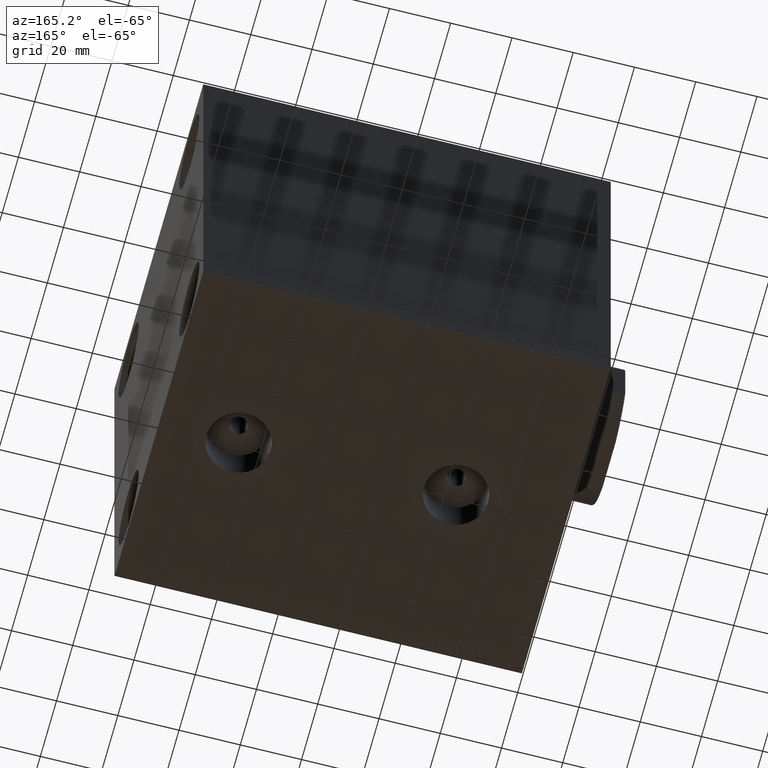
[diagram: clean part render]
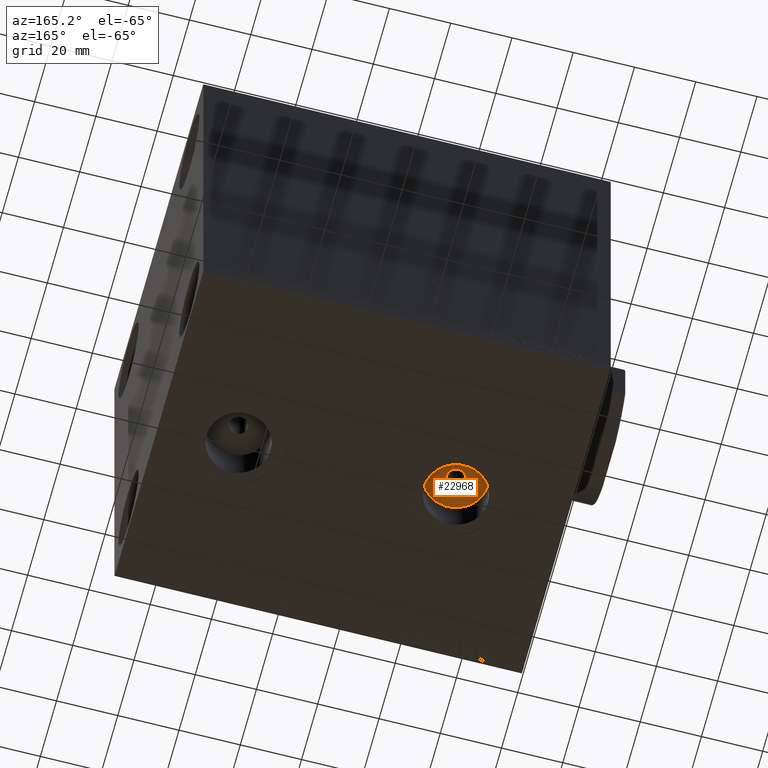
[diagram: same view with one face highlighted and labeled with its STEP entity id]
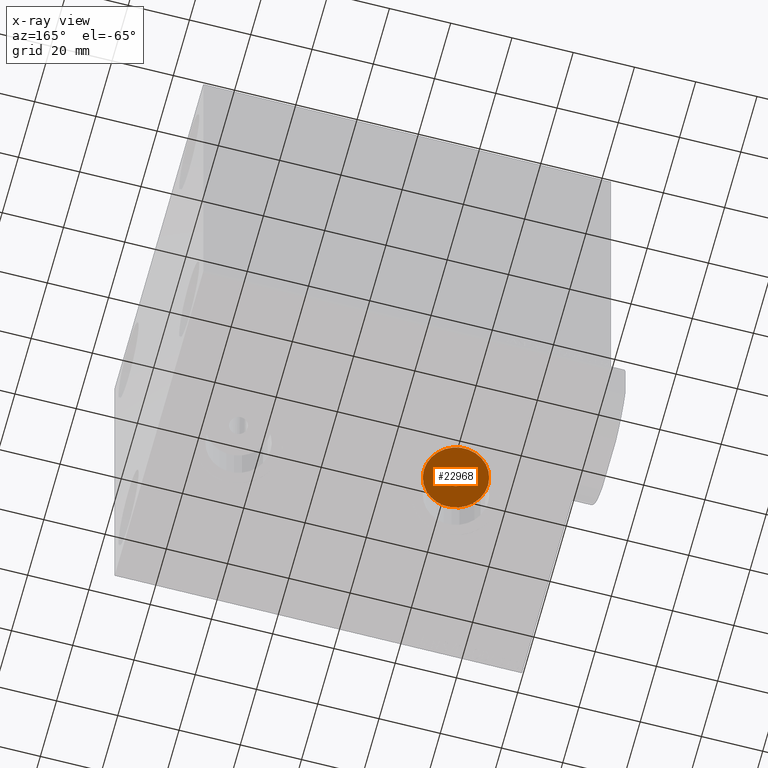
[diagram: x-ray of the same camera — body ghosted, the highlighted face saturated]
A machine part, auxiliary view. The second image highlights one B-rep face of the part: STEP entity #22968.
The next image is the same camera in x-ray: the body ghosted, the highlighted face saturated — about 0% of this face is hidden behind the body in this view.
In plain terms, the highlighted planar face has unit normal (0, 0, -1).
Its self-contained STEP definition (entity closure, byte-faithful):
#481 = CIRCLE ( 'NONE', #42449, 3.000000000000002665 ) ;
#617 = DIRECTION ( 'NONE',  ( 0.000000000000000000, 0.000000000000000000, -1.000000000000000000 ) ) ;
#1523 = EDGE_CURVE ( 'NONE', #16537, #41858, #35197, .T. ) ;
#5490 = CARTESIAN_POINT ( 'NONE',  ( 36.00000000000000000, 7.996758912811346044E-15, -57.00000000000001421 ) ) ;
#5770 = CARTESIAN_POINT ( 'NONE',  ( 32.99999999999999289, 7.996758912811346044E-15, -57.00000000000001421 ) ) ;
#7077 = EDGE_CURVE ( 'NONE', #32795, #12527, #481, .T. ) ;
#9299 = ORIENTED_EDGE ( 'NONE', *, *, #1523, .T. ) ;
#11537 = AXIS2_PLACEMENT_3D ( 'NONE', #21137, #38287, #34718 ) ;
#11721 = DIRECTION ( 'NONE',  ( -1.000000000000000000, 0.000000000000000000, -0.000000000000000000 ) ) ;
#12527 = VERTEX_POINT ( 'NONE', #5770 ) ;
#12690 = EDGE_CURVE ( 'NONE', #12527, #32795, #32550, .T. ) ;
#13946 = DIRECTION ( 'NONE',  ( -1.000000000000000000, 0.000000000000000000, 0.000000000000000000 ) ) ;
#14832 = FACE_OUTER_BOUND ( 'NONE', #20798, .T. ) ;
#15009 = DIRECTION ( 'NONE',  ( 0.000000000000000000, 0.000000000000000000, -1.000000000000000000 ) ) ;
#15438 = EDGE_LOOP ( 'NONE', ( #34601, #43882 ) ) ;
#15627 = DIRECTION ( 'NONE',  ( 0.000000000000000000, 0.000000000000000000, -1.000000000000000000 ) ) ;
#16537 = VERTEX_POINT ( 'NONE', #37108 ) ;
#16908 = AXIS2_PLACEMENT_3D ( 'NONE', #23763, #617, #13946 ) ;
#20798 = EDGE_LOOP ( 'NONE', ( #23992, #9299 ) ) ;
#21026 = CARTESIAN_POINT ( 'NONE',  ( 36.00000000000000000, 7.996758912811346044E-15, -57.00000000000001421 ) ) ;
#21137 = CARTESIAN_POINT ( 'NONE',  ( 36.00000000000000000, 7.996758912811346044E-15, -57.00000000000001421 ) ) ;
#22314 = CARTESIAN_POINT ( 'NONE',  ( 36.00000000000000000, 7.996758912811346044E-15, -57.00000000000001421 ) ) ;
#22968 = ADVANCED_FACE ( 'NONE', ( #25310, #14832 ), #28877, .T. ) ;
#23763 = CARTESIAN_POINT ( 'NONE',  ( 36.00000000000000000, 7.996758912811346044E-15, -57.00000000000001421 ) ) ;
#23992 = ORIENTED_EDGE ( 'NONE', *, *, #27144, .T. ) ;
#24819 = CARTESIAN_POINT ( 'NONE',  ( 25.51999999999999602, 7.996758912811346044E-15, -57.00000000000001421 ) ) ;
#25047 = CIRCLE ( 'NONE', #11537, 10.48000000000000043 ) ;
#25310 = FACE_BOUND ( 'NONE', #15438, .T. ) ;
#27144 = EDGE_CURVE ( 'NONE', #41858, #16537, #25047, .T. ) ;
#27783 = AXIS2_PLACEMENT_3D ( 'NONE', #5490, #28655, #11721 ) ;
#28111 = AXIS2_PLACEMENT_3D ( 'NONE', #21026, #15009, #34610 ) ;
#28655 = DIRECTION ( 'NONE',  ( 0.000000000000000000, 0.000000000000000000, -1.000000000000000000 ) ) ;
#28877 = PLANE ( 'NONE',  #27783 ) ;
#31544 = CARTESIAN_POINT ( 'NONE',  ( 39.00000000000000000, 8.364152952555553066E-15, -57.00000000000001421 ) ) ;
#32550 = CIRCLE ( 'NONE', #16908, 3.000000000000002665 ) ;
#32795 = VERTEX_POINT ( 'NONE', #31544 ) ;
#34601 = ORIENTED_EDGE ( 'NONE', *, *, #12690, .F. ) ;
#34610 = DIRECTION ( 'NONE',  ( -1.000000000000000000, 0.000000000000000000, 0.000000000000000000 ) ) ;
#34718 = DIRECTION ( 'NONE',  ( -1.000000000000000000, 0.000000000000000000, 0.000000000000000000 ) ) ;
#35197 = CIRCLE ( 'NONE', #28111, 10.48000000000000043 ) ;
#35897 = DIRECTION ( 'NONE',  ( -1.000000000000000000, 0.000000000000000000, 0.000000000000000000 ) ) ;
#37108 = CARTESIAN_POINT ( 'NONE',  ( 46.47999999999999687, 9.280188758317773110E-15, -57.00000000000001421 ) ) ;
#38287 = DIRECTION ( 'NONE',  ( 0.000000000000000000, 0.000000000000000000, -1.000000000000000000 ) ) ;
#41858 = VERTEX_POINT ( 'NONE', #24819 ) ;
#42449 = AXIS2_PLACEMENT_3D ( 'NONE', #22314, #15627, #35897 ) ;
#43882 = ORIENTED_EDGE ( 'NONE', *, *, #7077, .F. ) ;